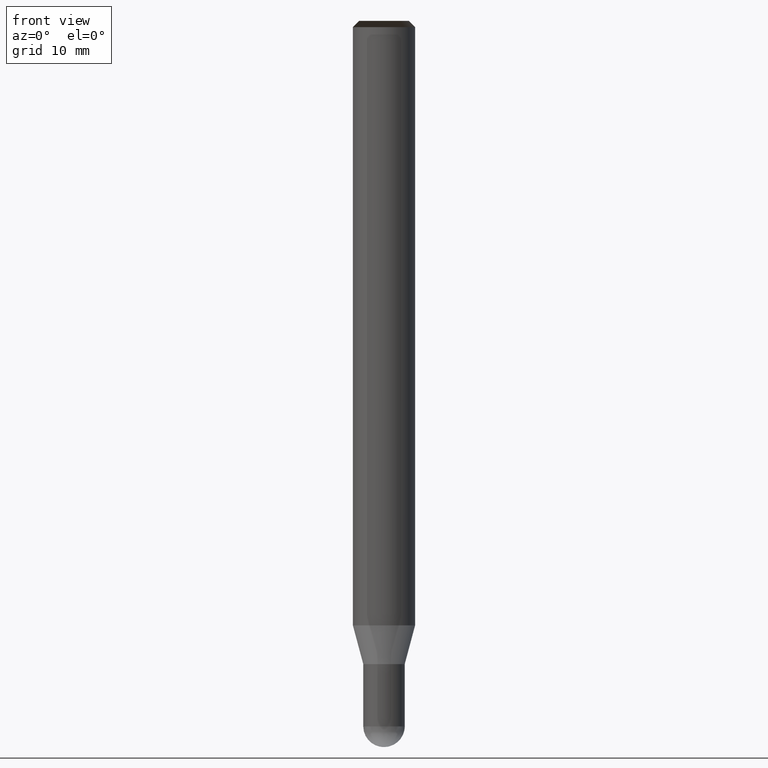
[diagram: clean part render]
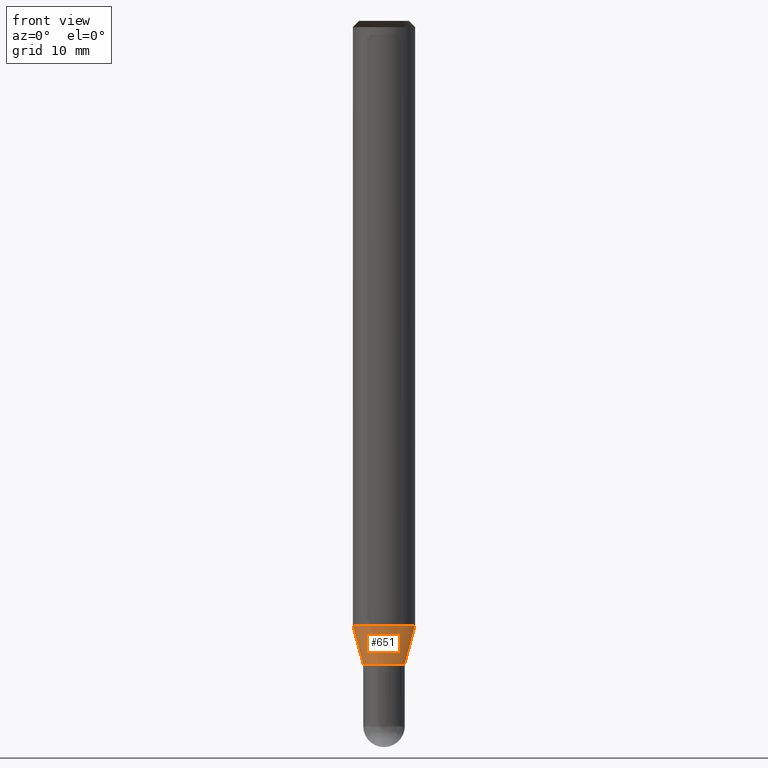
[diagram: same view with one face highlighted and labeled with its STEP entity id]
A machine part, front view. The second image highlights one B-rep face of the part: STEP entity #651.
In plain terms, the highlighted face is a freeform B-spline surface patch.
Its self-contained STEP definition (entity closure, byte-faithful):
#338=CARTESIAN_POINT('',(2.0,0.0,-3.732050807569));
#342=CARTESIAN_POINT('',(-2.0,0.0,-3.732050807569));
#343=CARTESIAN_POINT('',(3.0,0.0,-0.0));
#347=CARTESIAN_POINT('',(-3.0,0.0,-0.0));
#359=CARTESIAN_POINT('',(-2.0,-2.0,-3.732050807569));
#360=CARTESIAN_POINT('',(0.0,-2.0,-3.732050807569));
#361=CARTESIAN_POINT('',(2.0,-2.0,-3.732050807569));
#362=CARTESIAN_POINT('',(-3.0,-3.0,-0.0));
#363=CARTESIAN_POINT('',(0.0,-3.0,-0.0));
#364=CARTESIAN_POINT('',(3.0,-3.0,-0.0));
#632=(
BOUNDED_SURFACE()
B_SPLINE_SURFACE(1,2,(
(#342,#359,#360,#361,#338),
(#347,#362,#363,#364,#343)
), .UNSPECIFIED.,.F.,.F.,.F.)
B_SPLINE_SURFACE_WITH_KNOTS((2,2),(3,2,3),(
0.0,1.0),(
0.0,0.5,1.0), .UNSPECIFIED.)
GEOMETRIC_REPRESENTATION_ITEM()
RATIONAL_B_SPLINE_SURFACE(((1.0,0.707106781187,1.0,0.707106781187,1.0),
(1.0,0.707106781187,1.0,0.707106781187,1.0)
))
REPRESENTATION_ITEM('')
SURFACE()
);
#633=(
BOUNDED_CURVE()
B_SPLINE_CURVE(1,(#347,#342),.UNSPECIFIED.,.F.,.F.)
B_SPLINE_CURVE_WITH_KNOTS((2,2),
(0.0,1.0),.UNSPECIFIED.)
CURVE()
GEOMETRIC_REPRESENTATION_ITEM()
RATIONAL_B_SPLINE_CURVE((1.0,1.0))
REPRESENTATION_ITEM('')
);
#634=(
BOUNDED_CURVE()
B_SPLINE_CURVE(2,(#342,#359,#360,#361,#338),.UNSPECIFIED.,.F.,.F.)
B_SPLINE_CURVE_WITH_KNOTS((3,2,3),
(0.0,0.5,1.0),.UNSPECIFIED.)
CURVE()
GEOMETRIC_REPRESENTATION_ITEM()
RATIONAL_B_SPLINE_CURVE((1.0,0.707106781187,1.0,0.707106781187,1.0))
REPRESENTATION_ITEM('')
);
#635=(
BOUNDED_CURVE()
B_SPLINE_CURVE(1,(#338,#343),.UNSPECIFIED.,.F.,.F.)
B_SPLINE_CURVE_WITH_KNOTS((2,2),
(0.0,1.0),.UNSPECIFIED.)
CURVE()
GEOMETRIC_REPRESENTATION_ITEM()
RATIONAL_B_SPLINE_CURVE((1.0,1.0))
REPRESENTATION_ITEM('')
);
#636=(
BOUNDED_CURVE()
B_SPLINE_CURVE(2,(#343,#364,#363,#362,#347),.UNSPECIFIED.,.F.,.F.)
B_SPLINE_CURVE_WITH_KNOTS((3,2,3),
(0.0,0.5,1.0),.UNSPECIFIED.)
CURVE()
GEOMETRIC_REPRESENTATION_ITEM()
RATIONAL_B_SPLINE_CURVE((1.0,0.707106781187,1.0,0.707106781187,1.0))
REPRESENTATION_ITEM('')
);
#637=VERTEX_POINT('',#338);
#638=VERTEX_POINT('',#342);
#639=VERTEX_POINT('',#343);
#640=VERTEX_POINT('',#347);
#641=EDGE_CURVE('',#640,#638,#633,.T.);
#642=EDGE_CURVE('',#638,#637,#634,.T.);
#643=EDGE_CURVE('',#637,#639,#635,.T.);
#644=EDGE_CURVE('',#639,#640,#636,.T.);
#645=ORIENTED_EDGE('',*,*,#641,.T.);
#646=ORIENTED_EDGE('',*,*,#642,.T.);
#647=ORIENTED_EDGE('',*,*,#643,.T.);
#648=ORIENTED_EDGE('',*,*,#644,.T.);
#649=EDGE_LOOP('',(#645,#646,#647,#648));
#650=FACE_OUTER_BOUND('',#649,.T.);
#651=ADVANCED_FACE('',(#650),#632,.T.);